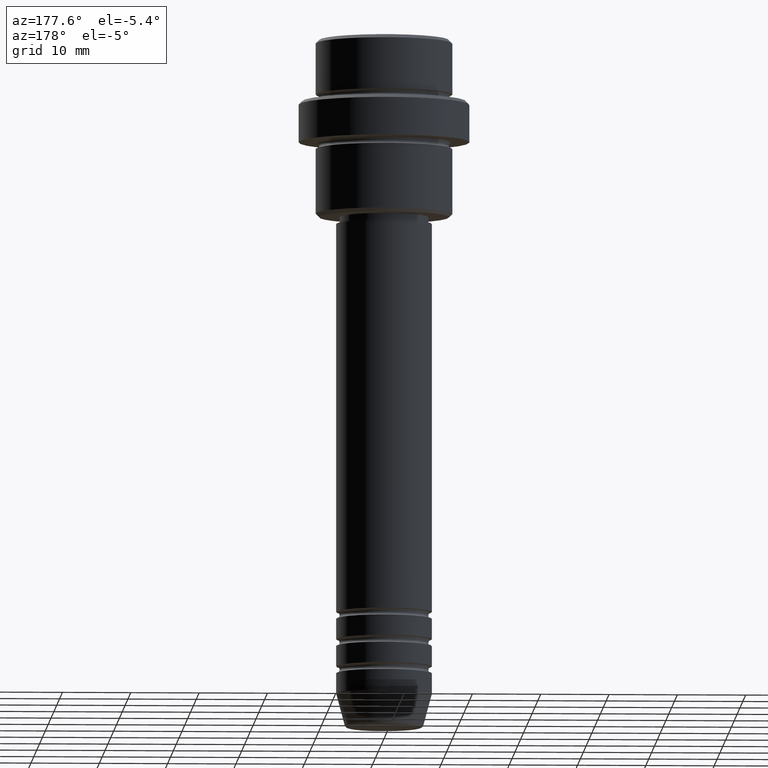
[diagram: clean part render]
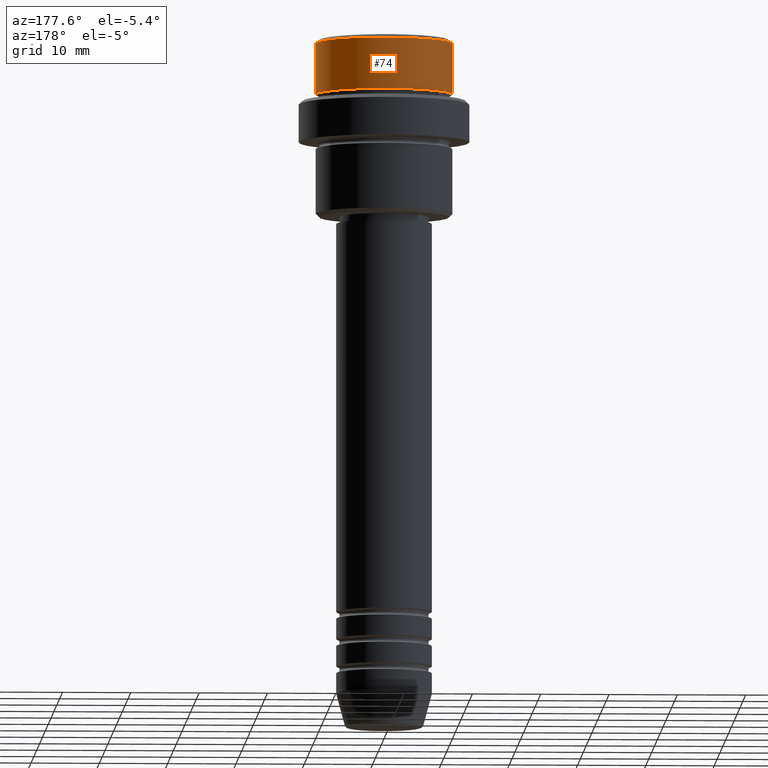
[diagram: same view with one face highlighted and labeled with its STEP entity id]
A machine part, auxiliary view. The second image highlights one B-rep face of the part: STEP entity #74.
In plain terms, the highlighted cylindrical surface (partial cylindrical patch) has radius 10 mm, axis along (-0, -0, 1).
Its self-contained STEP definition (entity closure, byte-faithful):
#11 = CIRCLE ( 'NONE', #979, 9.999999999999998224 ) ;
#23 = ORIENTED_EDGE ( 'NONE', *, *, #349, .T. ) ;
#74 = ADVANCED_FACE ( 'NONE', ( #357 ), #244, .T. ) ;
#91 = CARTESIAN_POINT ( 'NONE',  ( 0.000000000000000000, 0.000000000000000000, -7.999999999999998224 ) ) ;
#115 = EDGE_CURVE ( 'NONE', #178, #990, #969, .T. ) ;
#178 = VERTEX_POINT ( 'NONE', #861 ) ;
#224 = DIRECTION ( 'NONE',  ( -0.000000000000000000, -0.000000000000000000, 1.000000000000000000 ) ) ;
#231 = DIRECTION ( 'NONE',  ( -0.000000000000000000, -0.000000000000000000, 1.000000000000000000 ) ) ;
#235 = CARTESIAN_POINT ( 'NONE',  ( 0.000000000000000000, 0.000000000000000000, 0.000000000000000000 ) ) ;
#244 = CYLINDRICAL_SURFACE ( 'NONE', #978, 9.999999999999998224 ) ;
#265 = VECTOR ( 'NONE', #266, 1000.000000000000000 ) ;
#266 = DIRECTION ( 'NONE',  ( -0.000000000000000000, -0.000000000000000000, 1.000000000000000000 ) ) ;
#309 = CARTESIAN_POINT ( 'NONE',  ( -9.999999999999998224, 1.224646799147353059E-15, -7.999999999999998224 ) ) ;
#311 = AXIS2_PLACEMENT_3D ( 'NONE', #989, #323, #768 ) ;
#323 = DIRECTION ( 'NONE',  ( 0.000000000000000000, 0.000000000000000000, -1.000000000000000000 ) ) ;
#332 = LINE ( 'NONE', #1210, #818 ) ;
#349 = EDGE_CURVE ( 'NONE', #851, #1365, #332, .T. ) ;
#357 = FACE_OUTER_BOUND ( 'NONE', #1009, .T. ) ;
#365 = CARTESIAN_POINT ( 'NONE',  ( -9.999999999999998224, 1.224646799147353059E-15, -0.4999999999999970024 ) ) ;
#417 = ORIENTED_EDGE ( 'NONE', *, *, #115, .F. ) ;
#602 = CARTESIAN_POINT ( 'NONE',  ( 9.999999999999998224, 0.000000000000000000, 0.000000000000000000 ) ) ;
#649 = CIRCLE ( 'NONE', #311, 9.999999999999998224 ) ;
#666 = DIRECTION ( 'NONE',  ( 1.000000000000000000, 0.000000000000000000, 0.000000000000000000 ) ) ;
#676 = DIRECTION ( 'NONE',  ( -0.000000000000000000, -0.000000000000000000, 1.000000000000000000 ) ) ;
#768 = DIRECTION ( 'NONE',  ( 1.000000000000000000, 0.000000000000000000, 0.000000000000000000 ) ) ;
#795 = CARTESIAN_POINT ( 'NONE',  ( 9.999999999999998224, 0.000000000000000000, -0.4999999999999970024 ) ) ;
#807 = EDGE_CURVE ( 'NONE', #1365, #990, #649, .T. ) ;
#818 = VECTOR ( 'NONE', #224, 1000.000000000000000 ) ;
#839 = EDGE_CURVE ( 'NONE', #178, #851, #11, .T. ) ;
#851 = VERTEX_POINT ( 'NONE', #309 ) ;
#861 = CARTESIAN_POINT ( 'NONE',  ( 9.999999999999998224, 0.000000000000000000, -7.999999999999998224 ) ) ;
#969 = LINE ( 'NONE', #602, #265 ) ;
#978 = AXIS2_PLACEMENT_3D ( 'NONE', #235, #676, #666 ) ;
#979 = AXIS2_PLACEMENT_3D ( 'NONE', #91, #231, #1094 ) ;
#989 = CARTESIAN_POINT ( 'NONE',  ( 0.000000000000000000, 0.000000000000000000, -0.4999999999999970024 ) ) ;
#990 = VERTEX_POINT ( 'NONE', #795 ) ;
#1009 = EDGE_LOOP ( 'NONE', ( #1383, #23, #1097, #417 ) ) ;
#1094 = DIRECTION ( 'NONE',  ( 1.000000000000000000, 0.000000000000000000, 0.000000000000000000 ) ) ;
#1097 = ORIENTED_EDGE ( 'NONE', *, *, #807, .T. ) ;
#1210 = CARTESIAN_POINT ( 'NONE',  ( -9.999999999999998224, 1.224646799147353059E-15, 0.000000000000000000 ) ) ;
#1365 = VERTEX_POINT ( 'NONE', #365 ) ;
#1383 = ORIENTED_EDGE ( 'NONE', *, *, #839, .T. ) ;